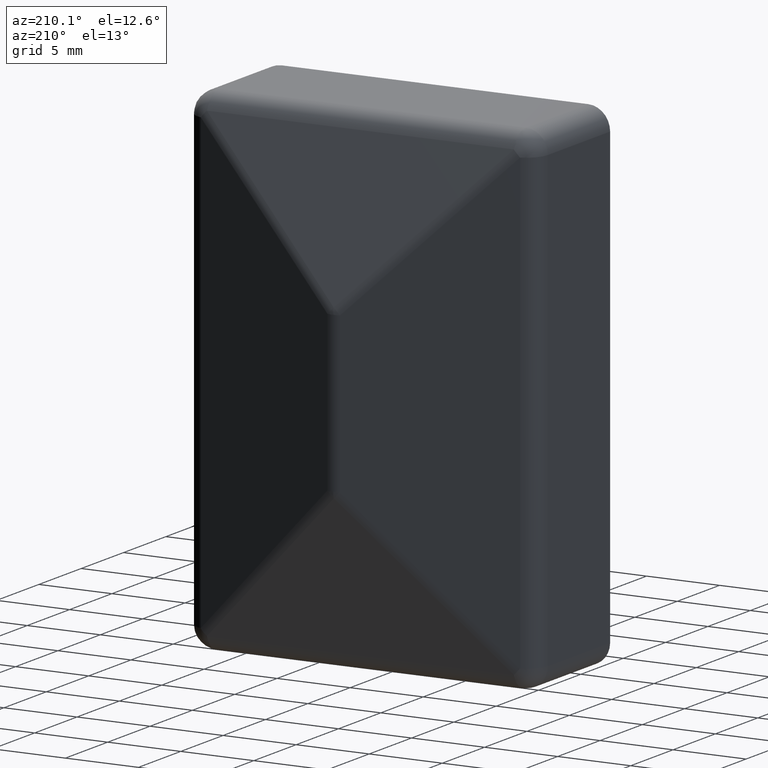
[diagram: clean part render]
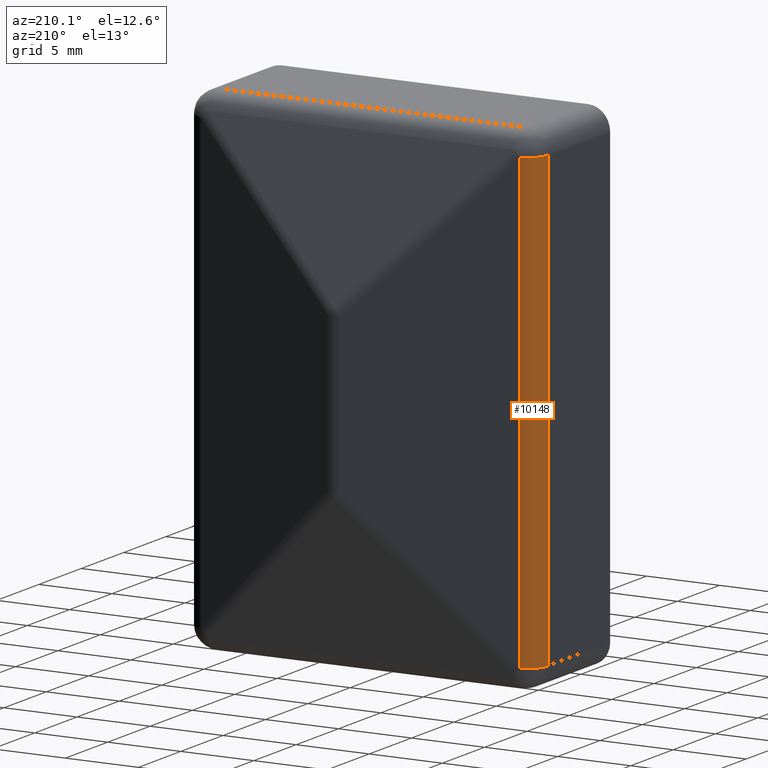
[diagram: same view with one face highlighted and labeled with its STEP entity id]
A machine part, auxiliary view. The second image highlights one B-rep face of the part: STEP entity #10148.
In plain terms, the highlighted cylindrical surface (edge-blend (fillet) strip) has radius 1.5 mm, axis along (-0, -0, 1).
Its self-contained STEP definition (entity closure, byte-faithful):
#426 = VERTEX_POINT ( 'NONE', #2001 ) ;
#831 = CARTESIAN_POINT ( 'NONE',  ( -10.49999999999998401, 7.350000000000012967, -15.50000000000002842 ) ) ;
#1169 = CARTESIAN_POINT ( 'NONE',  ( -10.93102182834950042, 8.786739427831740556, -16.99999999999997513 ) ) ;
#1173 = CARTESIAN_POINT ( 'NONE',  ( -10.93102182834950042, 8.786739427831740556, 15.50000000000002132 ) ) ;
#1300 = LINE ( 'NONE', #11741, #3855 ) ;
#1348 = CARTESIAN_POINT ( 'NONE',  ( -10.49999999999998401, 7.350000000000012967, -16.99999999999997513 ) ) ;
#1627 = DIRECTION ( 'NONE',  ( 1.000000000000000000, 0.000000000000000000, 0.000000000000000000 ) ) ;
#1665 = EDGE_CURVE ( 'NONE', #11258, #5918, #2567, .T. ) ;
#1729 = DIRECTION ( 'NONE',  ( -0.000000000000000000, -0.000000000000000000, 1.000000000000000000 ) ) ;
#2001 = CARTESIAN_POINT ( 'NONE',  ( -11.99999999999998224, 7.350000000000012967, -15.49999999999997335 ) ) ;
#2567 = LINE ( 'NONE', #1169, #7376 ) ;
#2763 = ORIENTED_EDGE ( 'NONE', *, *, #1665, .F. ) ;
#3274 = CARTESIAN_POINT ( 'NONE',  ( -10.93102182834950042, 8.786739427831740556, -15.50000000000002842 ) ) ;
#3525 = ORIENTED_EDGE ( 'NONE', *, *, #7924, .T. ) ;
#3855 = VECTOR ( 'NONE', #4035, 1000.000000000000000 ) ;
#4035 = DIRECTION ( 'NONE',  ( -0.000000000000000000, -0.000000000000000000, 1.000000000000000000 ) ) ;
#4077 = DIRECTION ( 'NONE',  ( 0.000000000000000000, 0.000000000000000000, -1.000000000000000000 ) ) ;
#5918 = VERTEX_POINT ( 'NONE', #1173 ) ;
#6470 = CIRCLE ( 'NONE', #9673, 1.499999999999999556 ) ;
#7376 = VECTOR ( 'NONE', #7850, 1000.000000000000000 ) ;
#7797 = AXIS2_PLACEMENT_3D ( 'NONE', #1348, #8965, #10127 ) ;
#7850 = DIRECTION ( 'NONE',  ( -0.000000000000000000, -0.000000000000000000, 1.000000000000000000 ) ) ;
#7924 = EDGE_CURVE ( 'NONE', #11258, #426, #6470, .T. ) ;
#8184 = EDGE_LOOP ( 'NONE', ( #2763, #3525, #13317, #11243 ) ) ;
#8834 = CYLINDRICAL_SURFACE ( 'NONE', #7797, 1.499999999999999556 ) ;
#8965 = DIRECTION ( 'NONE',  ( -0.000000000000000000, -0.000000000000000000, 1.000000000000000000 ) ) ;
#9673 = AXIS2_PLACEMENT_3D ( 'NONE', #831, #1729, #12837 ) ;
#9860 = EDGE_CURVE ( 'NONE', #426, #14095, #1300, .T. ) ;
#10127 = DIRECTION ( 'NONE',  ( 1.000000000000000000, 0.000000000000000000, 0.000000000000000000 ) ) ;
#10148 = ADVANCED_FACE ( 'NONE', ( #10737 ), #8834, .T. ) ;
#10518 = EDGE_CURVE ( 'NONE', #14095, #5918, #11736, .T. ) ;
#10737 = FACE_OUTER_BOUND ( 'NONE', #8184, .T. ) ;
#10741 = CARTESIAN_POINT ( 'NONE',  ( -10.49999999999998401, 7.350000000000012967, 15.50000000000002842 ) ) ;
#11243 = ORIENTED_EDGE ( 'NONE', *, *, #10518, .T. ) ;
#11258 = VERTEX_POINT ( 'NONE', #3274 ) ;
#11736 = CIRCLE ( 'NONE', #13682, 1.499999999999999556 ) ;
#11741 = CARTESIAN_POINT ( 'NONE',  ( -11.99999999999998224, 7.350000000000012967, -16.99999999999997513 ) ) ;
#12837 = DIRECTION ( 'NONE',  ( 1.000000000000000000, 0.000000000000000000, 0.000000000000000000 ) ) ;
#13317 = ORIENTED_EDGE ( 'NONE', *, *, #9860, .T. ) ;
#13682 = AXIS2_PLACEMENT_3D ( 'NONE', #10741, #4077, #1627 ) ;
#14095 = VERTEX_POINT ( 'NONE', #14136 ) ;
#14136 = CARTESIAN_POINT ( 'NONE',  ( -11.99999999999998224, 7.350000000000012967, 15.50000000000002842 ) ) ;